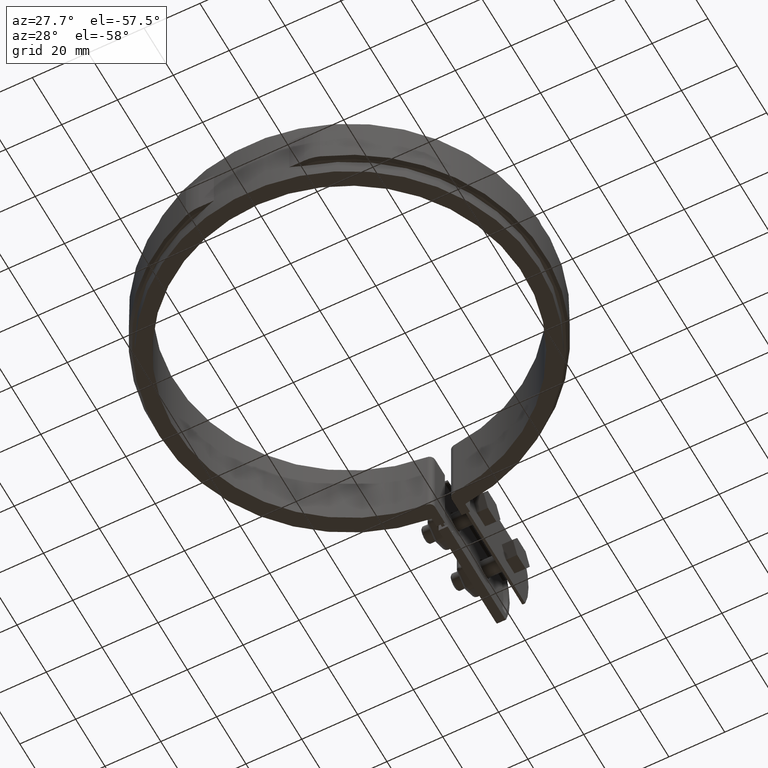
[diagram: clean part render]
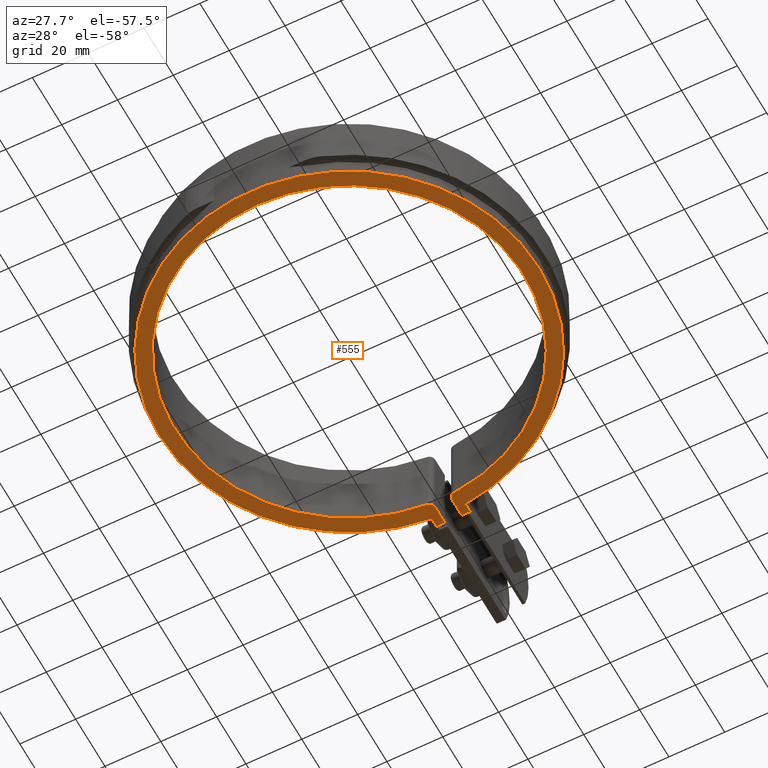
[diagram: same view with one face highlighted and labeled with its STEP entity id]
A machine part, auxiliary view. The second image highlights one B-rep face of the part: STEP entity #555.
In plain terms, the highlighted planar face has unit normal (0, 0, -1).
Its self-contained STEP definition (entity closure, byte-faithful):
#555 = ADVANCED_FACE( '', ( #1011 ), #1012, .T. );
#1011 = FACE_OUTER_BOUND( '', #2310, .T. );
#1012 = PLANE( '', #2311 );
#2310 = EDGE_LOOP( '', ( #4900, #4901, #4902, #4903, #4904, #4905, #4906, #4907, #4908, #4909 ) );
#2311 = AXIS2_PLACEMENT_3D( '', #4910, #4911, #4912 );
#4900 = ORIENTED_EDGE( '', *, *, #7106, .F. );
#4901 = ORIENTED_EDGE( '', *, *, #7116, .F. );
#4902 = ORIENTED_EDGE( '', *, *, #7135, .F. );
#4903 = ORIENTED_EDGE( '', *, *, #7156, .F. );
#4904 = ORIENTED_EDGE( '', *, *, #7130, .F. );
#4905 = ORIENTED_EDGE( '', *, *, #7144, .F. );
#4906 = ORIENTED_EDGE( '', *, *, #7177, .F. );
#4907 = ORIENTED_EDGE( '', *, *, #7178, .F. );
#4908 = ORIENTED_EDGE( '', *, *, #7179, .F. );
#4909 = ORIENTED_EDGE( '', *, *, #7180, .F. );
#4910 = CARTESIAN_POINT( '', ( 5.23287371063066, 66.7021222069070, -14.0000000000000 ) );
#4911 = DIRECTION( '', ( 0.000000000000000, 0.000000000000000, -1.00000000000000 ) );
#4912 = DIRECTION( '', ( 0.102941178312730, 0.994687445284993, 0.000000000000000 ) );
#7106 = EDGE_CURVE( '', #8196, #8198, #8199, .T. );
#7116 = EDGE_CURVE( '', #8209, #8196, #8211, .T. );
#7130 = EDGE_CURVE( '', #8235, #8221, #8237, .T. );
#7135 = EDGE_CURVE( '', #8245, #8209, #8247, .T. );
#7144 = EDGE_CURVE( '', #8259, #8235, #8261, .T. );
#7156 = EDGE_CURVE( '', #8221, #8245, #8281, .T. );
#7177 = EDGE_CURVE( '', #8310, #8259, #8311, .T. );
#7178 = EDGE_CURVE( '', #8312, #8310, #8313, .T. );
#7179 = EDGE_CURVE( '', #8314, #8312, #8315, .T. );
#7180 = EDGE_CURVE( '', #8198, #8314, #8316, .T. );
#8196 = VERTEX_POINT( '', #11775 );
#8198 = VERTEX_POINT( '', #11778 );
#8199 = LINE( '', #11779, #11780 );
#8209 = VERTEX_POINT( '', #11798 );
#8211 = LINE( '', #11801, #11802 );
#8221 = VERTEX_POINT( '', #11817 );
#8235 = VERTEX_POINT( '', #11840 );
#8237 = LINE( '', #11843, #11844 );
#8245 = VERTEX_POINT( '', #11857 );
#8247 = LINE( '', #11860, #11861 );
#8259 = VERTEX_POINT( '', #11882 );
#8261 = LINE( '', #11885, #11886 );
#8281 = CIRCLE( '', #11908, 68.0000000000000 );
#8310 = VERTEX_POINT( '', #11949 );
#8311 = LINE( '', #11950, #11951 );
#8312 = VERTEX_POINT( '', #11952 );
#8313 = CIRCLE( '', #11953, 2.00000000000000 );
#8314 = VERTEX_POINT( '', #11954 );
#8315 = CIRCLE( '', #11955, 62.5000000000000 );
#8316 = CIRCLE( '', #11956, 2.00000000000000 );
#11775 = CARTESIAN_POINT( '', ( 3.00000000000000, 71.0000000000000, -14.0000000000000 ) );
#11778 = CARTESIAN_POINT( '', ( 3.00000000000000, 64.3059095262636, -14.0000000000000 ) );
#11779 = CARTESIAN_POINT( '', ( 3.00000000000000, 71.0000000000000, -14.0000000000000 ) );
#11780 = VECTOR( '', #13701, 1000.00000000000 );
#11798 = CARTESIAN_POINT( '', ( 6.00000000000000, 71.0000000000000, -14.0000000000000 ) );
#11801 = CARTESIAN_POINT( '', ( 6.00000000000002, 71.0000000000000, -14.0000000000000 ) );
#11802 = VECTOR( '', #13711, 1000.00000000000 );
#11817 = CARTESIAN_POINT( '', ( -5.99999999999999, 67.7347768875044, -14.0000000000000 ) );
#11840 = CARTESIAN_POINT( '', ( -6.00000000000000, 71.0000000000000, -14.0000000000000 ) );
#11843 = CARTESIAN_POINT( '', ( -5.99999999999999, 71.0000000000000, -14.0000000000000 ) );
#11844 = VECTOR( '', #13727, 1000.00000000000 );
#11857 = CARTESIAN_POINT( '', ( 6.00000000000001, 67.7347768875045, -14.0000000000000 ) );
#11860 = CARTESIAN_POINT( '', ( 6.00000000000000, 67.7347768875044, -14.0000000000000 ) );
#11861 = VECTOR( '', #13731, 1000.00000000000 );
#11882 = CARTESIAN_POINT( '', ( -2.99999999999995, 71.0000000000000, -14.0000000000000 ) );
#11885 = CARTESIAN_POINT( '', ( -5.00000000000000, 71.0000000000000, -14.0000000000000 ) );
#11886 = VECTOR( '', #13739, 1000.00000000000 );
#11908 = AXIS2_PLACEMENT_3D( '', #13769, #13770, #13771 );
#11949 = CARTESIAN_POINT( '', ( -2.99999999999995, 64.3059095262636, -14.0000000000000 ) );
#11950 = CARTESIAN_POINT( '', ( -2.99999999999995, 64.3059095262636, -14.0000000000000 ) );
#11951 = VECTOR( '', #13808, 1000.00000000000 );
#11952 = CARTESIAN_POINT( '', ( -4.84496124031002, 62.3119278355267, -14.0000000000000 ) );
#11953 = AXIS2_PLACEMENT_3D( '', #13809, #13810, #13811 );
#11954 = CARTESIAN_POINT( '', ( 4.84496124031012, 62.3119278355267, -14.0000000000000 ) );
#11955 = AXIS2_PLACEMENT_3D( '', #13812, #13813, #13814 );
#11956 = AXIS2_PLACEMENT_3D( '', #13815, #13816, #13817 );
#13701 = DIRECTION( '', ( -5.55111512312578E-017, -1.00000000000000, 0.000000000000000 ) );
#13711 = DIRECTION( '', ( -1.00000000000000, 1.38777878078145E-017, 0.000000000000000 ) );
#13727 = DIRECTION( '', ( -6.93889390390723E-017, -1.00000000000000, 0.000000000000000 ) );
#13731 = DIRECTION( '', ( 6.93889390390723E-017, 1.00000000000000, 0.000000000000000 ) );
#13739 = DIRECTION( '', ( -1.00000000000000, 1.38777878078145E-017, 0.000000000000000 ) );
#13769 = CARTESIAN_POINT( '', ( 1.73472347597681E-015, 2.77555756156289E-014, -14.0000000000000 ) );
#13770 = DIRECTION( '', ( 0.000000000000000, 0.000000000000000, 1.00000000000000 ) );
#13771 = DIRECTION( '', ( 1.00000000000000, -1.38777878078145E-017, 0.000000000000000 ) );
#13808 = DIRECTION( '', ( 5.55111512312578E-017, 1.00000000000000, 0.000000000000000 ) );
#13809 = CARTESIAN_POINT( '', ( -4.99999999999995, 64.3059095262636, -14.0000000000000 ) );
#13810 = DIRECTION( '', ( 0.000000000000000, 0.000000000000000, 1.00000000000000 ) );
#13811 = DIRECTION( '', ( 1.00000000000000, 4.21884749357559E-015, 0.000000000000000 ) );
#13812 = CARTESIAN_POINT( '', ( 0.000000000000000, 0.000000000000000, -14.0000000000000 ) );
#13813 = DIRECTION( '', ( 0.000000000000000, 0.000000000000000, -1.00000000000000 ) );
#13814 = DIRECTION( '', ( 1.00000000000000, -5.55111512312578E-017, 0.000000000000000 ) );
#13815 = CARTESIAN_POINT( '', ( 5.00000000000000, 64.3059095262636, -14.0000000000000 ) );
#13816 = DIRECTION( '', ( 0.000000000000000, 0.000000000000000, 1.00000000000000 ) );
#13817 = DIRECTION( '', ( -1.00000000000000, 2.72004641033163E-015, 0.000000000000000 ) );